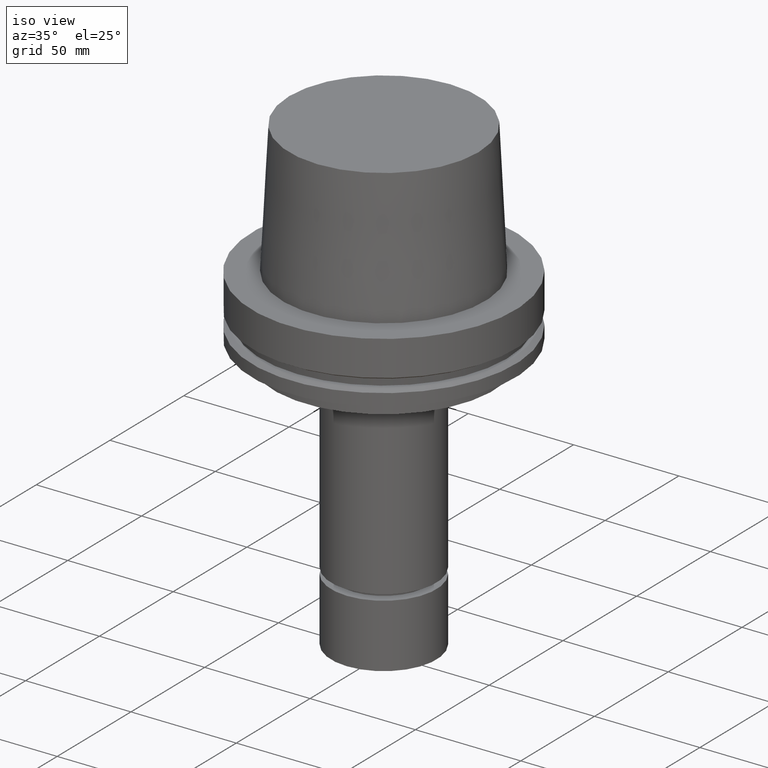
[diagram: clean part render]
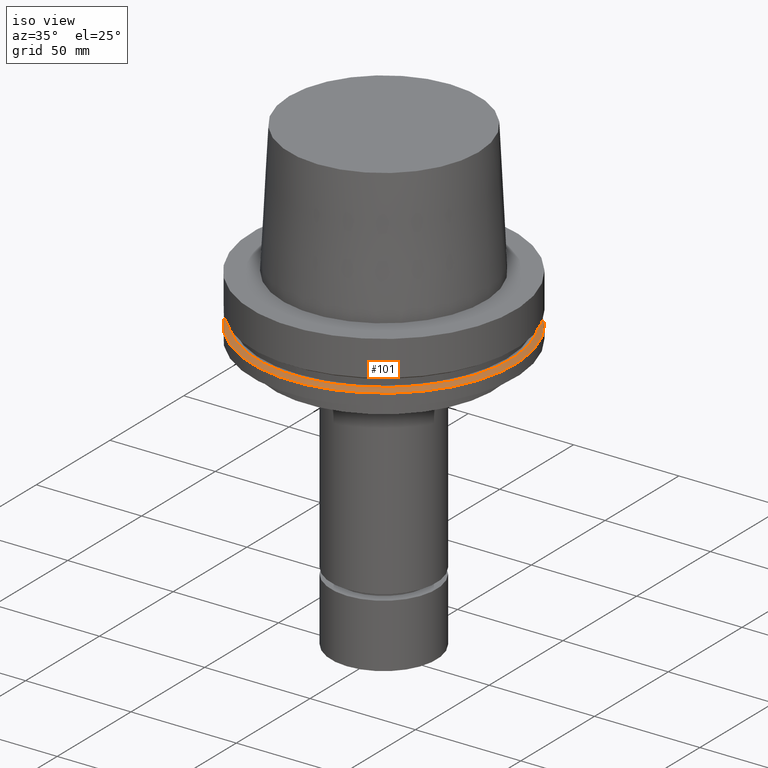
[diagram: same view with one face highlighted and labeled with its STEP entity id]
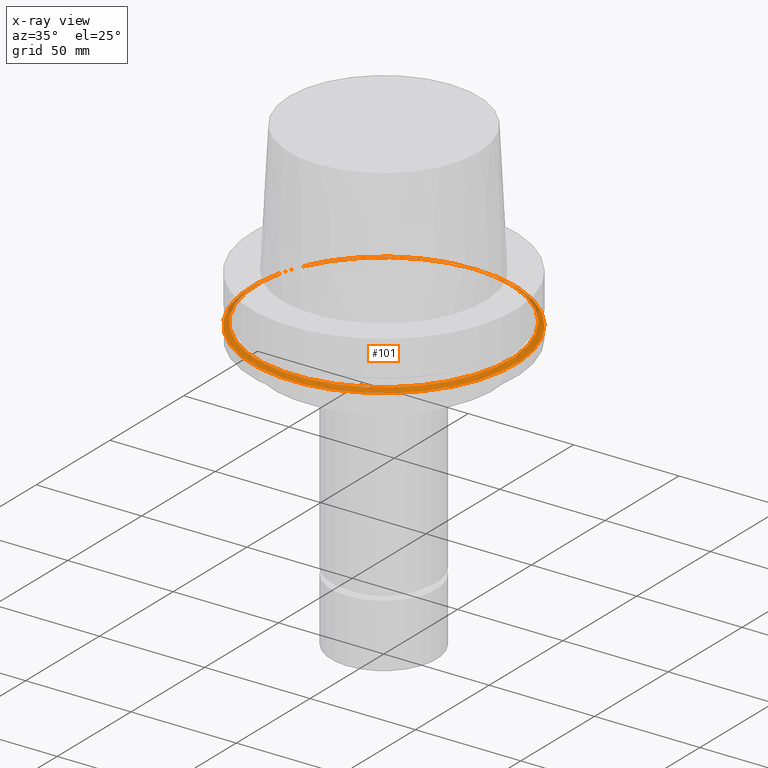
[diagram: x-ray of the same camera — body ghosted, the highlighted face saturated]
A machine part, iso view. The second image highlights one B-rep face of the part: STEP entity #101.
The next image is the same camera in x-ray: the body ghosted, the highlighted face saturated — about 11% of this face is hidden behind the body in this view.
In plain terms, the highlighted conical surface has half-angle 60 deg.
Its self-contained STEP definition (entity closure, byte-faithful):
#101=ADVANCED_FACE('Unnamed[1]',(#251,#252),#253,.T.);
#109=EDGE_CURVE('Unnamed[1]',#264,#264,#265,.T.);
#116=EDGE_CURVE('Unnamed[1]',#275,#275,#276,.T.);
#251=FACE_BOUND('',#457,.T.);
#252=FACE_BOUND('',#458,.T.);
#253=CONICAL_SURFACE('',#459,61.311297632097,1.04719755119646);
#264=VERTEX_POINT('',#474);
#265=CIRCLE('',#475,62.5);
#275=VERTEX_POINT('',#488);
#276=CIRCLE('',#489,60.122595264194);
#457=EDGE_LOOP('',(#686));
#458=EDGE_LOOP('',(#687));
#459=AXIS2_PLACEMENT_3D('',#688,#689,#690);
#474=CARTESIAN_POINT('',(1.42350465640827E-015,62.5,-23.2475952641916));
#475=AXIS2_PLACEMENT_3D('',#700,#701,#702);
#488=CARTESIAN_POINT('',(1.33945743656747E-015,60.122595264194,-21.8750000000009));
#489=AXIS2_PLACEMENT_3D('',#712,#713,#714);
#686=ORIENTED_EDGE('',*,*,#109,.F.);
#687=ORIENTED_EDGE('',*,*,#116,.T.);
#688=CARTESIAN_POINT('',(1.38148104648787E-015,-1.0986911445632E-014,-22.5612976320962));
#689=DIRECTION('',(6.12323399573677E-017,-7.02088891513837E-016,-1.0));
#690=DIRECTION('',(3.81633929546977E-032,1.0,-7.02088891513837E-016));
#700=CARTESIAN_POINT('',(1.42350465640827E-015,-1.14687533893984E-014,-23.2475952641915));
#701=DIRECTION('',(6.12323399573677E-017,-7.02088891513837E-016,-1.0));
#702=DIRECTION('',(3.81633929546977E-032,1.0,-7.02088891513837E-016));
#712=CARTESIAN_POINT('',(1.33945743656747E-015,-1.05050695018656E-014,-21.8750000000008));
#713=DIRECTION('',(6.12323399573677E-017,-7.02088891513837E-016,-1.0));
#714=DIRECTION('',(3.81633929546977E-032,1.0,-7.02088891513837E-016));